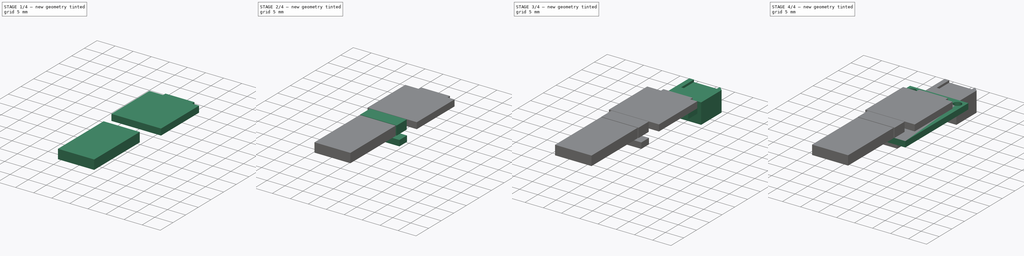
[diagram: build sequence overview — one tinted view per stage of 4, left to right]
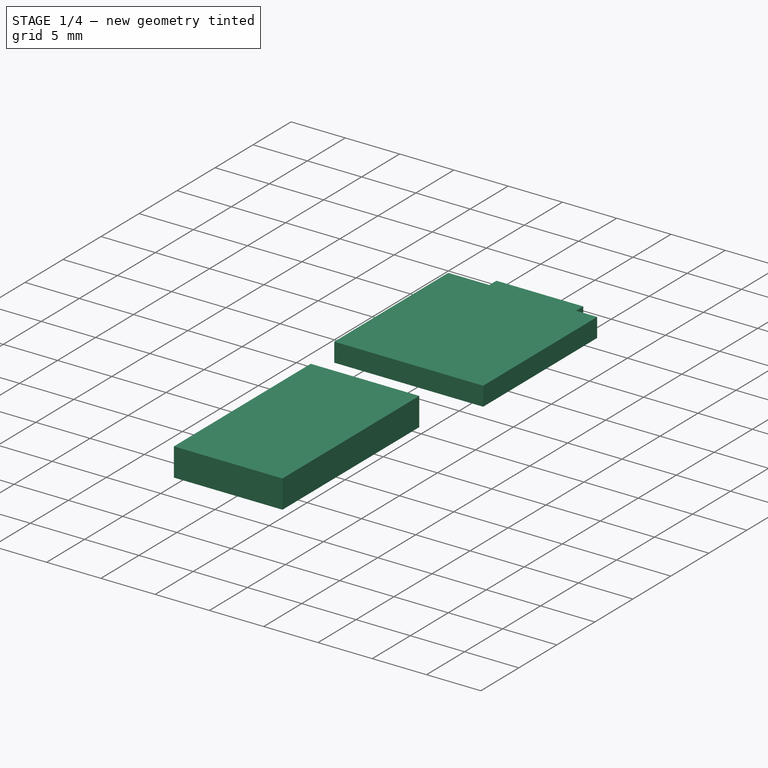
[diagram: stage 1 of 4 — iso view after this stage's code; geometry added in this stage tinted green]
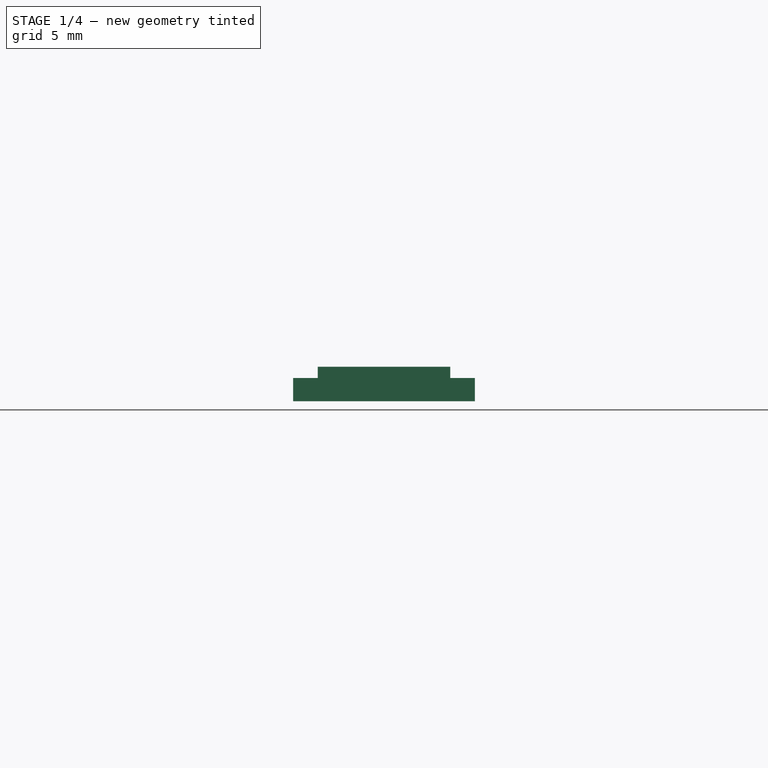
[diagram: stage 1 of 4 — front view after this stage's code; geometry added in this stage tinted green]
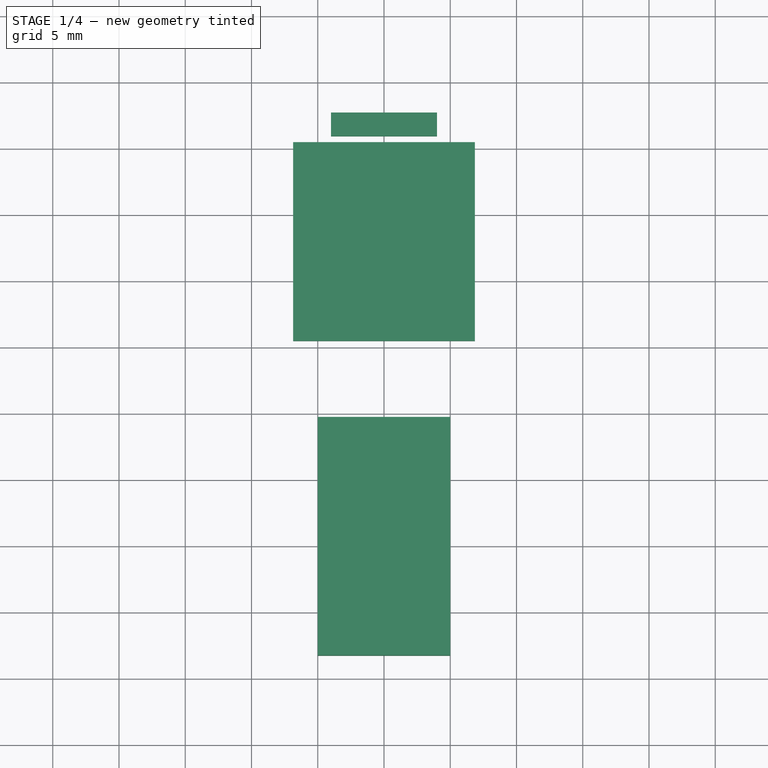
[diagram: stage 1 of 4 — top view after this stage's code; geometry added in this stage tinted green]
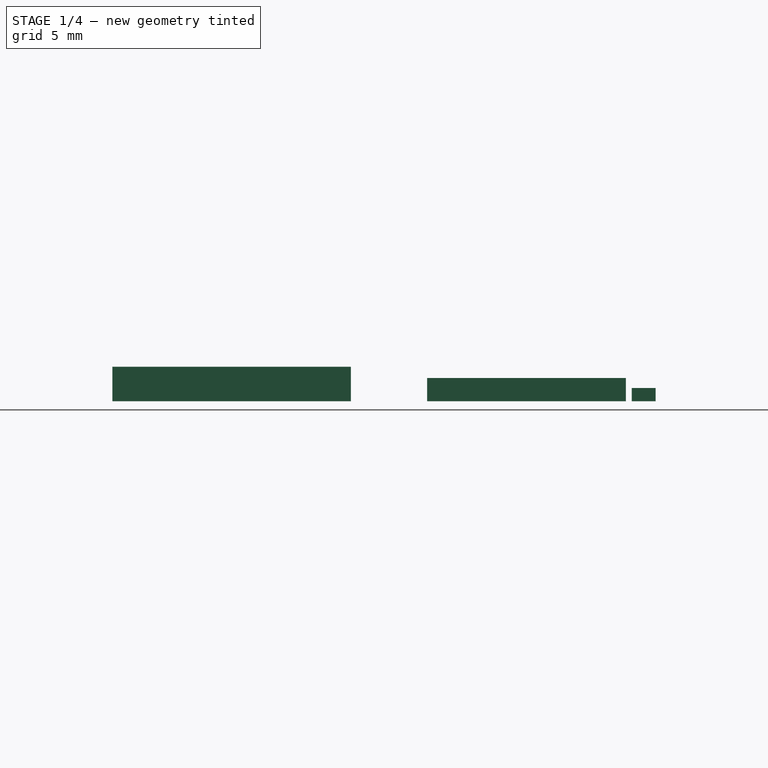
[diagram: stage 1 of 4 — right view after this stage's code; geometry added in this stage tinted green]
FCSTD DOCUMENT  (FreeCAD 0.19R24276 (Git))
Label: Std_IRSensor
License: All rights reserved
LicenseURL: http://en.wikipedia.org/wiki/All_rights_reserved
objects: Sketcher::SketchObject×12, PartDesign::Pad×9, PartDesign::Body×9, PartDesign::Plane×5, PartDesign::Pocket×3, PartDesign::Chamfer×1, App::Part×1
note: 52 computed .brp shape members not serialized (recipe doc carries the construction recipe); baked Part::Feature solids carry a one-line shape summary decoded from their .brp

FEATURE [PartDesign::Body] Body005  label="Pins"
  Group = -> [DatumPlane001,Sketch008,Pad005]
  Origin = -> Origin006
  Tip = -> Pad005
FEATURE [PartDesign::Plane] DatumPlane002
  AttachmentOffset = pos=(0,0,1.6) rot=(0,0,1;0rad)
  Length = 60
  MapMode = 5
  Placement = pos=(0,0,1.6) rot=(0,0,1;0rad)
  ResizeMode = 0
  Support = -> [XY_Plane007]
  Width = 60
FEATURE [Sketcher::SketchObject] Sketch009
  FullyConstrained = true
  MapMode = 5
  Placement = pos=(0,0,1.6) rot=(0,0,1;0rad)
  Support = -> [DatumPlane002]
  sketch-geometry (5):
    g0: LineSegment StartX=-4 StartY=-2.25 StartZ=0 EndX=4 EndY=-2.25 EndZ=0
    g1: LineSegment StartX=4 StartY=-2.25 StartZ=0 EndX=4 EndY=-4.05 EndZ=0
    g2: LineSegment StartX=4 StartY=-4.05 StartZ=0 EndX=-4 EndY=-4.05 EndZ=0
    g3: LineSegment StartX=-4 StartY=-4.05 StartZ=0 EndX=-4 EndY=-2.25 EndZ=0
    g4: LineSegment StartX=0 StartY=0 StartZ=0 EndX=0 EndY=-2.25 EndZ=0
  constraints (14):
    c: Coincident(g0,g1)
    c: Coincident(g1,g2)
    c: Coincident(g2,g3)
    c: Coincident(g3,g0)
    c: Horizontal(g0)
    c: Horizontal(g2)
    c: Vertical(g1)
    c: Vertical(g3)
    c: Coincident(g4,g-1)
    c: Vertical(g4)
    c: Symmetric(g0,g0,g4)
    c: Distance(g0) = 8
    c: Distance(g4) = 2.25
    c: Distance(g1) = 1.8
FEATURE [PartDesign::Pad] Pad006
  Direction = (1,1,1)
  Length = 1
  Length2 = 100
  Placement = pos=(0,0,1.6) rot=(0,0,1;0rad)
  Profile = -> Sketch009
  Type = 0
FEATURE [PartDesign::Body] Body006  label="IRSensSolder"
  Group = -> [DatumPlane002,Sketch009,Pad006]
  Origin = -> Origin007
  Tip = -> Pad006
FEATURE [PartDesign::Plane] DatumPlane003
  AttachmentOffset = pos=(0,0,1.6) rot=(0,0,1;0rad)
  Length = 60
  MapMode = 5
  Placement = pos=(0,0,1.6) rot=(0,0,1;0rad)
  ResizeMode = 0
  Support = -> [XY_Plane008]
  Width = 60
FEATURE [Sketcher::SketchObject] Sketch010
  FullyConstrained = true
  MapMode = 5
  Placement = pos=(0,0,1.6) rot=(0,0,1;0rad)
  Support = -> [DatumPlane003]
  sketch-geometry (5):
    g0: LineSegment StartX=-6.86 StartY=-4.5 StartZ=0 EndX=6.86 EndY=-4.5 EndZ=0
    g1: LineSegment StartX=6.86 StartY=-4.5 StartZ=0 EndX=6.86 EndY=-19.5 EndZ=0
    g2: LineSegment StartX=6.86 StartY=-19.5 StartZ=0 EndX=-6.86 EndY=-19.5 EndZ=0
    g3: LineSegment StartX=-6.86 StartY=-19.5 StartZ=0 EndX=-6.86 EndY=-4.5 EndZ=0
    g4: LineSegment StartX=0 StartY=0 StartZ=0 EndX=0 EndY=-4.5 EndZ=0
  constraints (14):
    c: Coincident(g0,g1)
    c: Coincident(g1,g2)
    c: Coincident(g2,g3)
    c: Coincident(g3,g0)
    c: Horizontal(g0)
    c: Horizontal(g2)
    c: Vertical(g1)
    c: Vertical(g3)
    c: Coincident(g4,g-1)
    c: PointOnObject(g4,g-2)
    c: Symmetric(g0,g0,g4)
    c: Distance(g0) = 13.72
    c: Distance(g1) = 15
    c: Distance(g4) = 4.5
FEATURE [PartDesign::Pad] Pad007
  Direction = (1,1,1)
  Length = 1.75
  Length2 = 100
  Placement = pos=(0,0,1.6) rot=(0,0,1;0rad)
  Profile = -> Sketch010
  Type = 0
FEATURE [PartDesign::Body] Body007  label="Chips"
  Group = -> [DatumPlane003,Sketch010,Pad007]
  Origin = -> Origin008
  Tip = -> Pad007
FEATURE [PartDesign::Plane] DatumPlane004
  AttachmentOffset = pos=(0,0,25.25) rot=(0,0,1;0rad)
  Length = 60
  MapMode = 5
  Placement = pos=(0,-25.25,5.6e-15) rot=(1,0,0;1.5708rad)
  ResizeMode = 0
  Support = -> [XZ_Plane009]
  Width = 60
FEATURE [Sketcher::SketchObject] Sketch011
  FullyConstrained = true
  MapMode = 5
  Placement = pos=(0,-25.25,5.6e-15) rot=(1,0,0;1.5708rad)
  Support = -> [DatumPlane004]
  sketch-geometry (5):
    g0: LineSegment StartX=-5 StartY=4.2 StartZ=0 EndX=5 EndY=4.2 EndZ=0
    g1: LineSegment StartX=5 StartY=4.2 StartZ=0 EndX=5 EndY=1.6 EndZ=0
    g2: LineSegment StartX=5 StartY=1.6 StartZ=0 EndX=-5 EndY=1.6 EndZ=0
    g3: LineSegment StartX=-5 StartY=1.6 StartZ=0 EndX=-5 EndY=4.2 EndZ=0
    g4: LineSegment StartX=0 StartY=0 StartZ=0 EndX=0 EndY=1.6 EndZ=0
  constraints (14):
    c: Coincident(g0,g1)
    c: Coincident(g1,g2)
    c: Coincident(g2,g3)
    c: Coincident(g3,g0)
    c: Horizontal(g0)
    c: Horizontal(g2)
    c: Vertical(g1)
    c: Vertical(g3)
    c: Coincident(g4,g-1)
    c: Vertical(g4)
    c: Symmetric(g2,g1,g4)
    c: Distance(g4) = 1.6
    c: Distance(g0) = 10
    c: Distance(g1) = 2.6
FEATURE [PartDesign::Pad] Pad008
  Direction = (1,1,1)
  Length = 18
  Length2 = 100
  Placement = pos=(0,-25.25,5.6e-15) rot=(1,0,0;1.5708rad)
  Profile = -> Sketch011
  Type = 0
FEATURE [PartDesign::Body] Body008  label="PinConnectors"
  Group = -> [DatumPlane004,Sketch011,Pad008]
  Origin = -> Origin009
  Tip = -> Pad008
FEATURE [App::Part] Part  label="IRSensor"
  Group = -> [Body,Body001,Body002,Body003,Body004,Body005,Body006,Body007,Body008]
  Origin = -> Origin
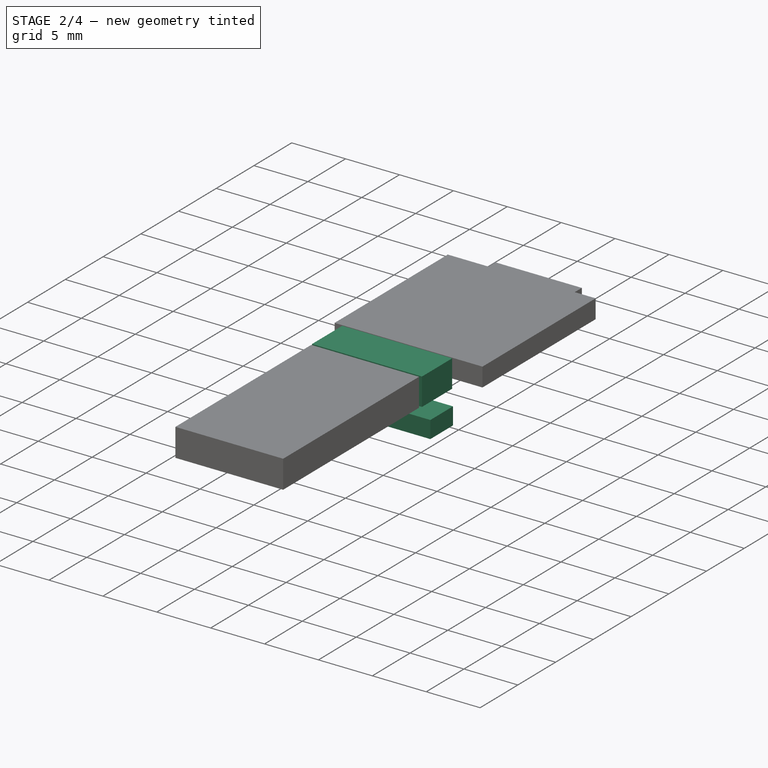
[diagram: stage 2 of 4 — iso view after this stage's code; geometry added in this stage tinted green]
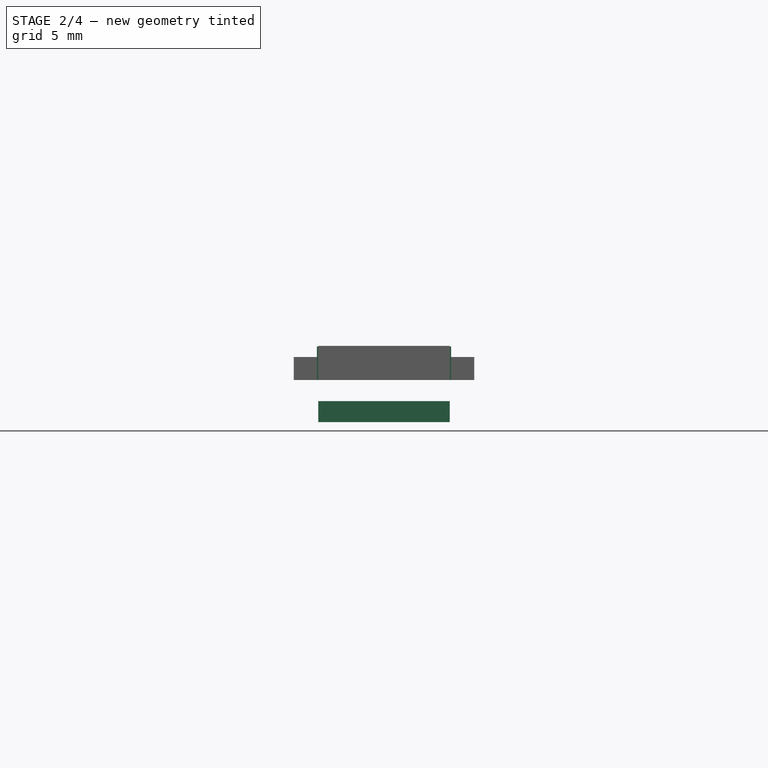
[diagram: stage 2 of 4 — front view after this stage's code; geometry added in this stage tinted green]
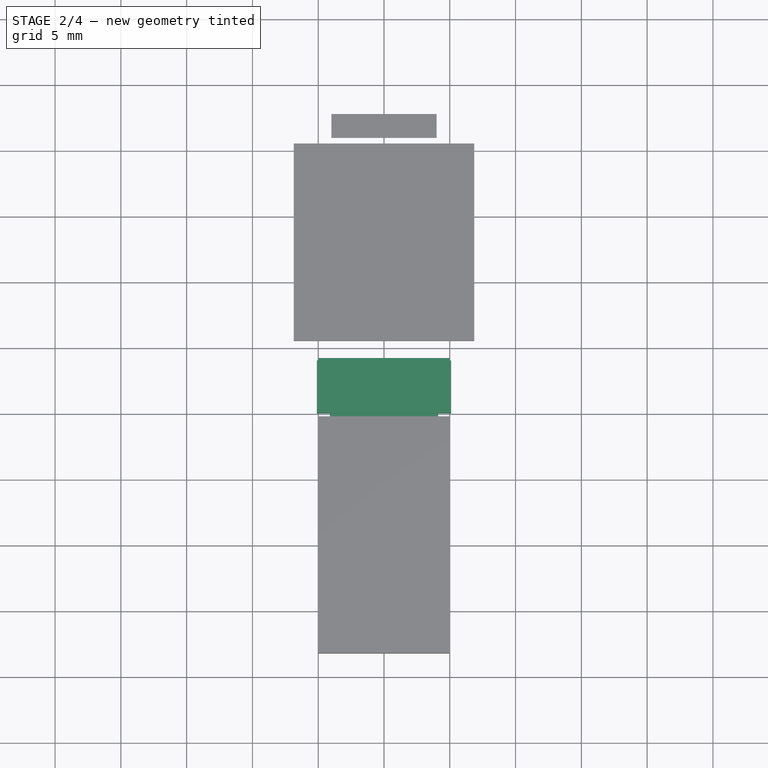
[diagram: stage 2 of 4 — top view after this stage's code; geometry added in this stage tinted green]
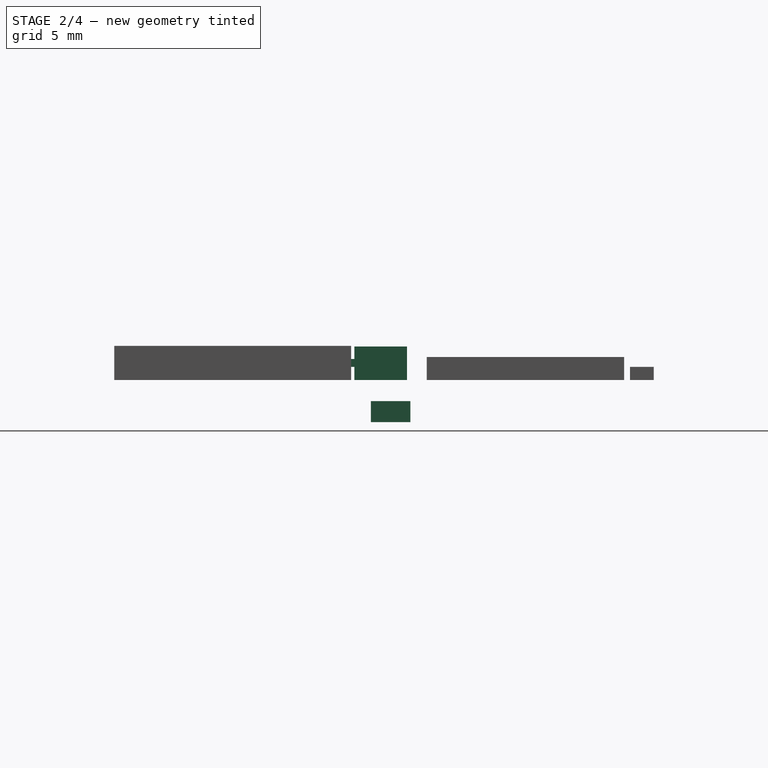
[diagram: stage 2 of 4 — right view after this stage's code; geometry added in this stage tinted green]
FEATURE [PartDesign::Body] Body002  label="IRConnect"
  Group = -> [Sketch005,Pad002]
  Origin = -> Origin003
  Tip = -> Pad002
FEATURE [Sketcher::SketchObject] Sketch006
  FullyConstrained = true
  MapMode = 5
  Support = -> [XY_Plane003]
  sketch-geometry (5):
    g0: LineSegment StartX=-5 StartY=-23.75 StartZ=0 EndX=5 EndY=-23.75 EndZ=0
    g1: LineSegment StartX=5 StartY=-23.75 StartZ=0 EndX=5 EndY=-20.75 EndZ=0
    g2: LineSegment StartX=5 StartY=-20.75 StartZ=0 EndX=-5 EndY=-20.75 EndZ=0
    g3: LineSegment StartX=-5 StartY=-20.75 StartZ=0 EndX=-5 EndY=-23.75 EndZ=0
    g4: LineSegment StartX=0 StartY=0 StartZ=0 EndX=0 EndY=-20.75 EndZ=0
  constraints (14):
    c: Coincident(g0,g1)
    c: Coincident(g1,g2)
    c: Coincident(g2,g3)
    c: Coincident(g3,g0)
    c: Horizontal(g0)
    c: Horizontal(g2)
    c: Vertical(g1)
    c: Vertical(g3)
    c: Coincident(g4,g-1)
    c: PointOnObject(g4,g-2)
    c: Symmetric(g2,g1,g4)
    c: Distance(g0) = 10
    c: Distance(g4) = 20.75
    c: Distance(g1) = 3
FEATURE [PartDesign::Pad] Pad003
  Direction = (1,1,1)
  Length = 1.6
  Length2 = 100
  Profile = -> Sketch006
  Reversed = true
  Type = 0
FEATURE [PartDesign::Body] Body003  label="PinSolderPoints"
  Group = -> [Sketch006,Pad003]
  Origin = -> Origin004
  Tip = -> Pad003
FEATURE [PartDesign::Plane] DatumPlane
  AttachmentOffset = pos=(0,0,1.6) rot=(0,0,1;0rad)
  Length = 60
  MapMode = 5
  Placement = pos=(0,0,1.6) rot=(0,0,1;0rad)
  ResizeMode = 0
  Support = -> [XY_Plane005]
  Width = 60
FEATURE [Sketcher::SketchObject] Sketch007
  FullyConstrained = true
  MapMode = 5
  Placement = pos=(0,0,1.6) rot=(0,0,1;0rad)
  Support = -> [DatumPlane]
  sketch-geometry (5):
    g0: LineSegment StartX=-5.1 StartY=-21 StartZ=0 EndX=5.1 EndY=-21 EndZ=0
    g1: LineSegment StartX=5.1 StartY=-21 StartZ=0 EndX=5.1 EndY=-25 EndZ=0
    g2: LineSegment StartX=5.1 StartY=-25 StartZ=0 EndX=-5.1 EndY=-25 EndZ=0
    g3: LineSegment StartX=-5.1 StartY=-25 StartZ=0 EndX=-5.1 EndY=-21 EndZ=0
    g4: LineSegment StartX=0 StartY=0 StartZ=0 EndX=0 EndY=-21 EndZ=0
  constraints (14):
    c: Coincident(g0,g1)
    c: Coincident(g1,g2)
    c: Coincident(g2,g3)
    c: Coincident(g3,g0)
    c: Horizontal(g0)
    c: Horizontal(g2)
    c: Vertical(g1)
    c: Vertical(g3)
    c: Coincident(g4,g-1)
    c: PointOnObject(g4,g-2)
    c: Symmetric(g0,g0,g4)
    c: Distance(g4) = 21
    c: Distance(g1) = 4
    c: Distance(g2) = 10.2
FEATURE [PartDesign::Pad] Pad004
  Direction = (1,1,1)
  Length = 2.55
  Length2 = 100
  Placement = pos=(0,0,1.6) rot=(0,0,1;0rad)
  Profile = -> Sketch007
  Type = 0
FEATURE [PartDesign::Body] Body004  label="PinMount"
  Group = -> [DatumPlane,Sketch007,Pad004]
  Origin = -> Origin005
  Tip = -> Pad004
FEATURE [PartDesign::Plane] DatumPlane001
  AttachmentOffset = pos=(0,0,25) rot=(0,0,1;0rad)
  Length = 60
  MapMode = 5
  Placement = pos=(0,-25,-5.6e-15) rot=(1,0,0;1.5708rad)
  ResizeMode = 0
  Support = -> [XZ_Plane006]
  Width = 60
FEATURE [Sketcher::SketchObject] Sketch008
  FullyConstrained = true
  MapMode = 5
  Placement = pos=(0,-25,-5.6e-15) rot=(1,0,0;1.5708rad)
  Support = -> [DatumPlane001]
  sketch-geometry (5):
    g0: LineSegment StartX=-4.11 StartY=3.2 StartZ=0 EndX=4.11 EndY=3.2 EndZ=0
    g1: LineSegment StartX=4.11 StartY=3.2 StartZ=0 EndX=4.11 EndY=2.6 EndZ=0
    g2: LineSegment StartX=4.11 StartY=2.6 StartZ=0 EndX=-4.11 EndY=2.6 EndZ=0
    g3: LineSegment StartX=-4.11 StartY=2.6 StartZ=0 EndX=-4.11 EndY=3.2 EndZ=0
    g4: LineSegment StartX=0 StartY=-1e-16 StartZ=0 EndX=0 EndY=2.6 EndZ=0
  constraints (14):
    c: Coincident(g0,g1)
    c: Coincident(g1,g2)
    c: Coincident(g2,g3)
    c: Coincident(g3,g0)
    c: Horizontal(g0)
    c: Horizontal(g2)
    c: Vertical(g1)
    c: Vertical(g3)
    c: Coincident(g4,g-1)
    c: PointOnObject(g4,g-2)
    c: Symmetric(g2,g1,g4)
    c: Distance(g4) = 2.6
    c: Distance(g1) = 0.6
    c: Distance(g0) = 8.22
FEATURE [PartDesign::Pad] Pad005
  Direction = (1,1,1)
  Length = 7
  Length2 = 100
  Placement = pos=(0,-25,-5.6e-15) rot=(1,0,0;1.5708rad)
  Profile = -> Sketch008
  Type = 0
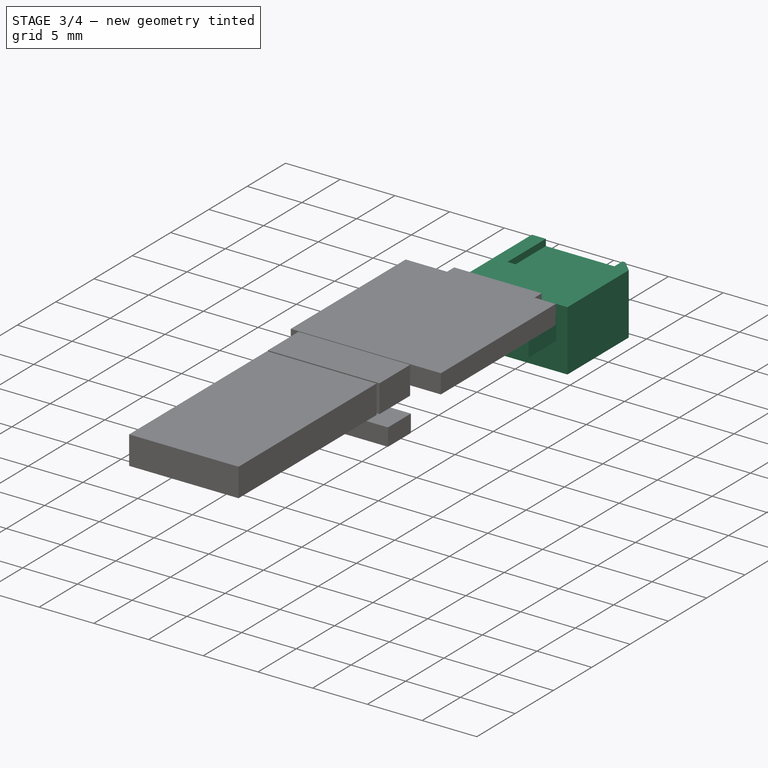
[diagram: stage 3 of 4 — iso view after this stage's code; geometry added in this stage tinted green]
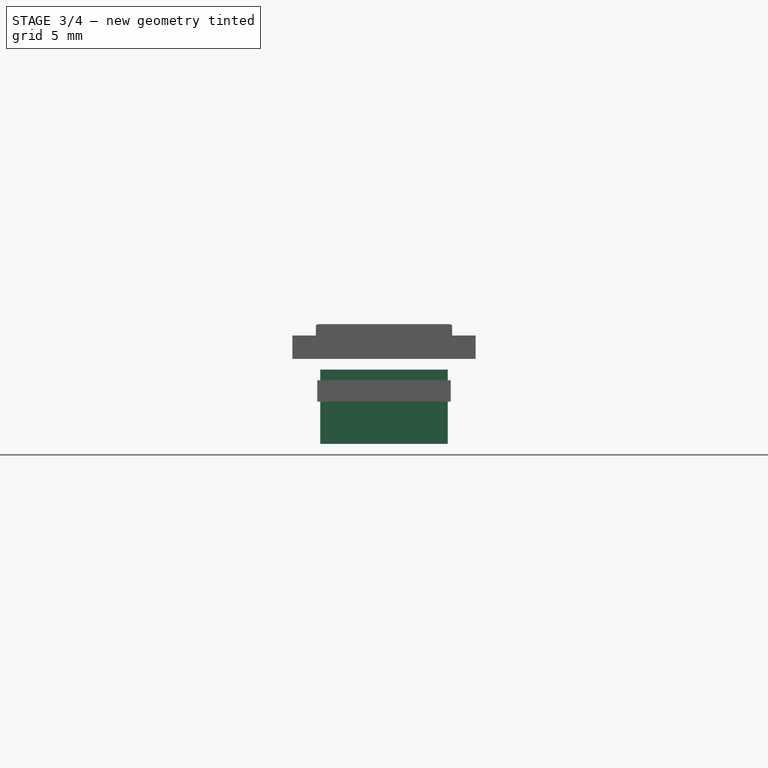
[diagram: stage 3 of 4 — front view after this stage's code; geometry added in this stage tinted green]
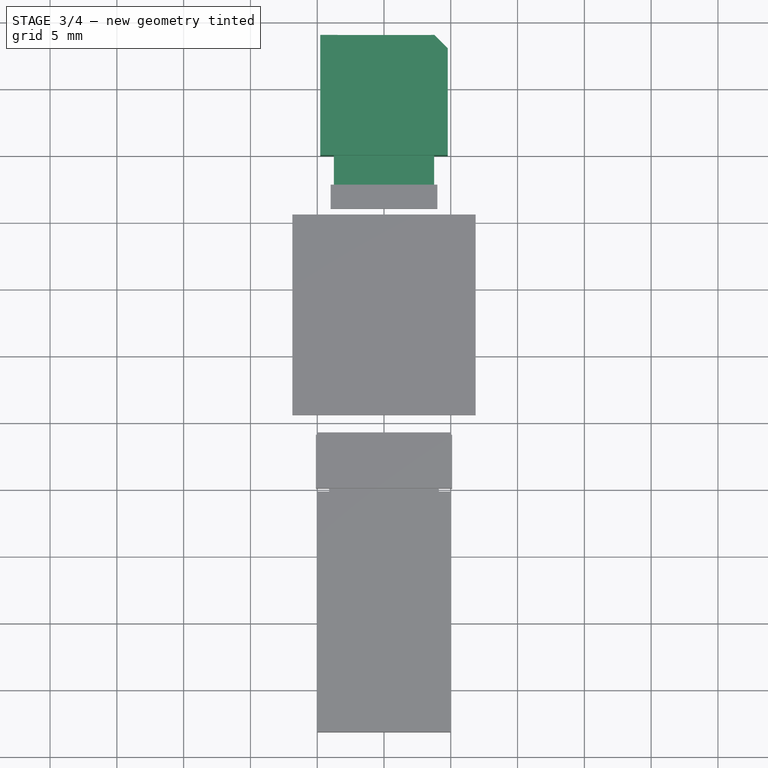
[diagram: stage 3 of 4 — top view after this stage's code; geometry added in this stage tinted green]
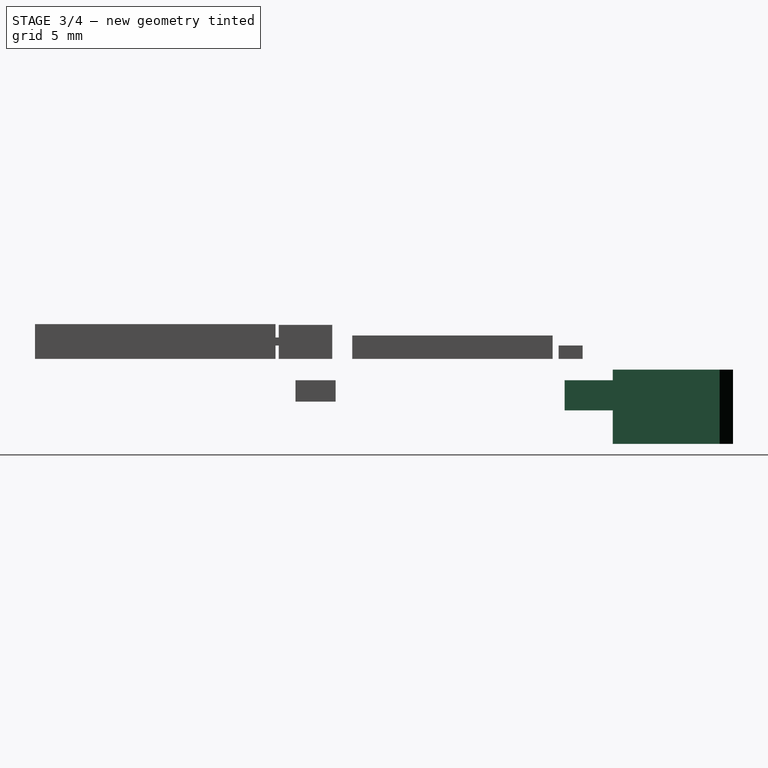
[diagram: stage 3 of 4 — right view after this stage's code; geometry added in this stage tinted green]
FEATURE [PartDesign::Body] Body  label="MainBoard"
  Group = -> [Sketch,Pad,Sketch001,Pocket]
  Origin = -> Origin001
  Tip = -> Pocket
FEATURE [Sketcher::SketchObject] Sketch002
  FullyConstrained = true
  MapMode = 5
  Placement = pos=(0,0,0) rot=(1,0,0;1.5708rad)
  Support = -> [XZ_Plane002]
  sketch-geometry (5):
    g0: LineSegment StartX=-4.775 StartY=0.8 StartZ=0 EndX=4.775 EndY=0.8 EndZ=0
    g1: LineSegment StartX=4.775 StartY=0.8 StartZ=0 EndX=4.775 EndY=-4.76 EndZ=0
    g2: LineSegment StartX=4.775 StartY=-4.76 StartZ=0 EndX=-4.775 EndY=-4.76 EndZ=0
    g3: LineSegment StartX=-4.775 StartY=-4.76 StartZ=0 EndX=-4.775 EndY=0.8 EndZ=0
    g4: LineSegment StartX=0 StartY=0 StartZ=0 EndX=0 EndY=0.8 EndZ=0
  constraints (14):
    c: Coincident(g0,g1)
    c: Coincident(g1,g2)
    c: Coincident(g2,g3)
    c: Coincident(g3,g0)
    c: Horizontal(g0)
    c: Horizontal(g2)
    c: Vertical(g1)
    c: Vertical(g3)
    c: Coincident(g4,g-1)
    c: PointOnObject(g4,g-2)
    c: Symmetric(g0,g0,g4)
    c: Distance(g0) = 9.55
    c: Distance(g1) = 5.56
    c: Distance(g4) = 0.8
FEATURE [PartDesign::Pad] Pad001
  Direction = (1,1,1)
  Length = 9
  Length2 = 100
  Placement = pos=(0,0,0) rot=(1,0,0;1.5708rad)
  Profile = -> Sketch002
  Reversed = true
  Type = 0
FEATURE [PartDesign::Chamfer] Chamfer
  Angle = 45
  Base = -> Pad001 [Edge7]
  BaseFeature = -> Pad001
  ChamferType = 0
  FlipDirection = false
  Placement = pos=(0,0,0) rot=(1,0,0;1.5708rad)
  Size = 1
  Size2 = 1
  SupportTransform = false
FEATURE [Sketcher::SketchObject] Sketch003
  FullyConstrained = true
  MapMode = 5
  Placement = pos=(0,9,-4e-15) rot=(-1,0,0;1.5708rad)
  Support = -> [Chamfer]
  sketch-geometry (11):
    g0: LineSegment StartX=-3.5 StartY=9.26 StartZ=0 EndX=3.5 EndY=9.26 EndZ=0
    g1: LineSegment StartX=3.5 StartY=9.26 StartZ=0 EndX=3.5 EndY=4.26 EndZ=0
    g2: LineSegment StartX=3.5 StartY=4.26 StartZ=0 EndX=-3.5 EndY=4.26 EndZ=0
    g3: LineSegment StartX=-3.5 StartY=4.26 StartZ=0 EndX=-3.5 EndY=9.26 EndZ=0
    g4: LineSegment StartX=-3.5 StartY=-0.2 StartZ=0 EndX=3.5 EndY=-0.2 EndZ=0
    g5: LineSegment StartX=3.5 StartY=-0.2 StartZ=0 EndX=3.5 EndY=-5.2 EndZ=0
    g6: LineSegment StartX=3.5 StartY=-5.2 StartZ=0 EndX=-3.5 EndY=-5.2 EndZ=0
    g7: LineSegment StartX=-3.5 StartY=-5.2 StartZ=0 EndX=-3.5 EndY=-0.2 EndZ=0
    g8: LineSegment StartX=-3.5 StartY=4.26 StartZ=0 EndX=-3.5 EndY=-0.2 EndZ=0
    g9: LineSegment StartX=3.5 StartY=4.26 StartZ=0 EndX=3.5 EndY=-0.2 EndZ=0
    g10: LineSegment StartX=0 StartY=0 StartZ=0 EndX=0 EndY=-0.2 EndZ=0
  constraints (30):
    c: Coincident(g0,g1)
    c: Coincident(g1,g2)
    c: Coincident(g2,g3)
    c: Coincident(g3,g0)
    c: Horizontal(g0)
    c: Horizontal(g2)
    c: Vertical(g1)
    c: Vertical(g3)
    c: Coincident(g4,g5)
    c: Coincident(g5,g6)
    c: Coincident(g6,g7)
    c: Coincident(g7,g4)
    c: Horizontal(g4)
    c: Horizontal(g6)
    c: Vertical(g5)
    c: Vertical(g7)
    c: Coincident(g8,g2)
    c: Coincident(g8,g4)
    c: Coincident(g9,g1)
    c: Coincident(g9,g4)
    c: Distance(g9) = 4.46
    c: Vertical(g8)
    c: Vertical(g9)
    c: Distance(g0) = 7
    c: Distance(g5) = 5
    c: Distance(g1) = 5
    c: Coincident(g10,g-1)
    c: PointOnObject(g10,g-2)
    c: Symmetric(g4,g4,g10)
    c: Distance(g10) = 0.2
FEATURE [PartDesign::Pocket] Pocket001
  BaseFeature = -> Chamfer
  Length = 5
  Length2 = 100
  Placement = pos=(0,0,0) rot=(1,0,0;1.5708rad)
  Profile = -> Sketch003
  Type = 0
FEATURE [PartDesign::Body] Body001  label="IRSens"
  Group = -> [Sketch002,Pad001,Chamfer,Sketch003,Pocket001,Sketch004,Pocket002]
  Origin = -> Origin002
  Tip = -> Pocket002
FEATURE [Sketcher::SketchObject] Sketch005
  FullyConstrained = true
  MapMode = 5
  Placement = pos=(0,0,0) rot=(1,0,0;1.5708rad)
  Support = -> [XZ_Plane003]
  sketch-geometry (4):
    g0: LineSegment StartX=-3.75 StartY=0 StartZ=0 EndX=3.75 EndY=0 EndZ=0
    g1: LineSegment StartX=3.75 StartY=0 StartZ=0 EndX=3.75 EndY=-2.25 EndZ=0
    g2: LineSegment StartX=3.75 StartY=-2.25 StartZ=0 EndX=-3.75 EndY=-2.25 EndZ=0
    g3: LineSegment StartX=-3.75 StartY=-2.25 StartZ=0 EndX=-3.75 EndY=0 EndZ=0
  constraints (11):
    c: Coincident(g0,g1)
    c: Coincident(g1,g2)
    c: Coincident(g2,g3)
    c: Coincident(g3,g0)
    c: Horizontal(g0)
    c: Horizontal(g2)
    c: Vertical(g1)
    c: Vertical(g3)
    c: Symmetric(g0,g0,g-1)
    c: Distance(g0) = 7.5
    c: Distance(g1) = 2.25
FEATURE [PartDesign::Pad] Pad002
  Direction = (1,1,1)
  Length = 3.6
  Length2 = 100
  Placement = pos=(0,0,0) rot=(1,0,0;1.5708rad)
  Profile = -> Sketch005
  Type = 0
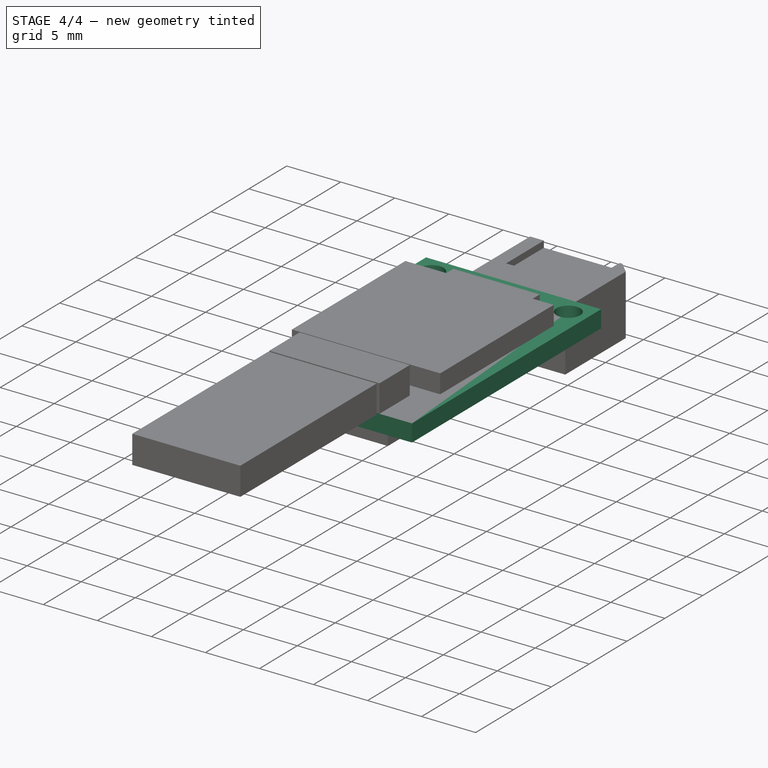
[diagram: stage 4 of 4 — iso view after this stage's code; geometry added in this stage tinted green]
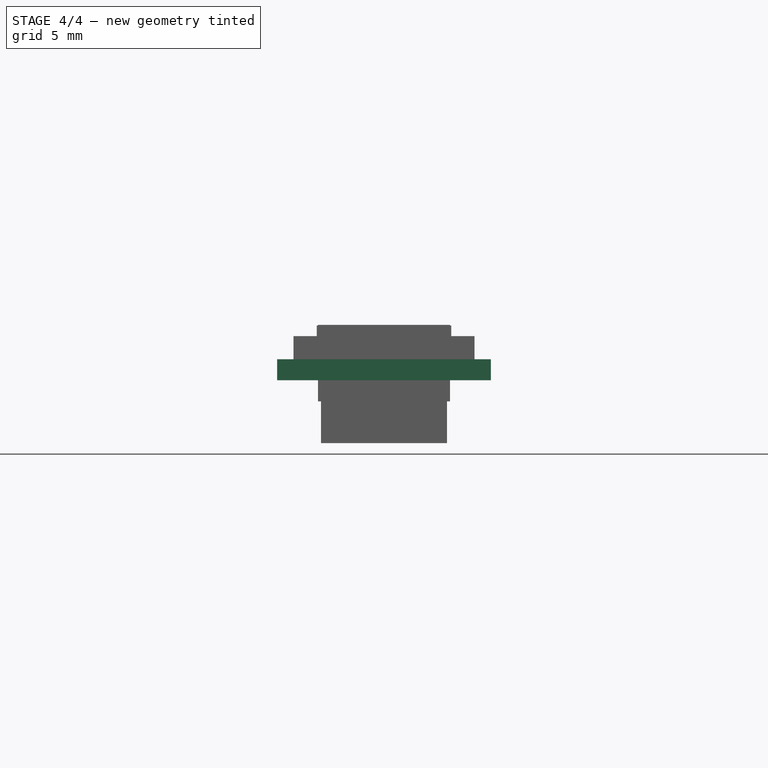
[diagram: stage 4 of 4 — front view after this stage's code; geometry added in this stage tinted green]
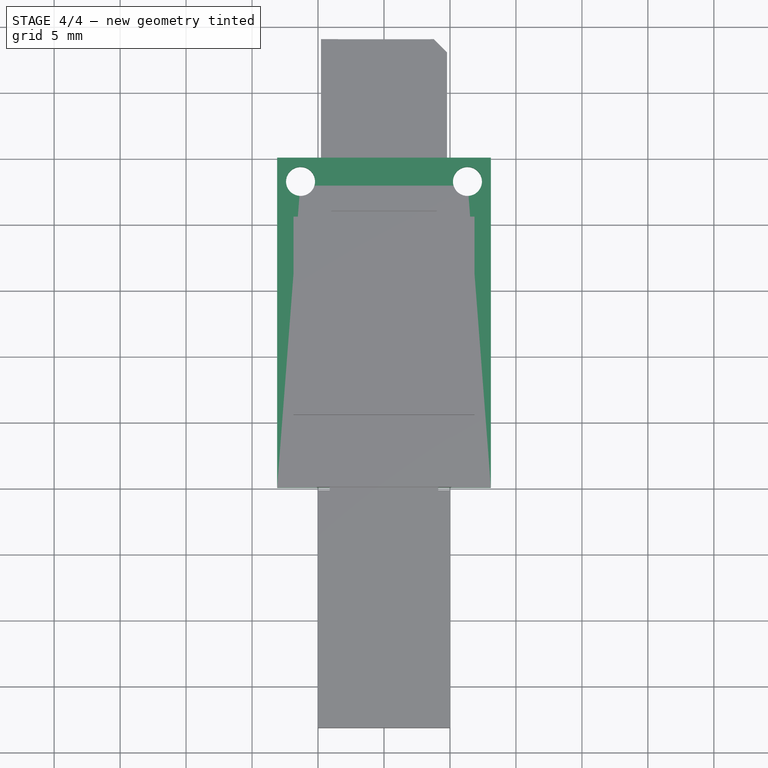
[diagram: stage 4 of 4 — top view after this stage's code; geometry added in this stage tinted green]
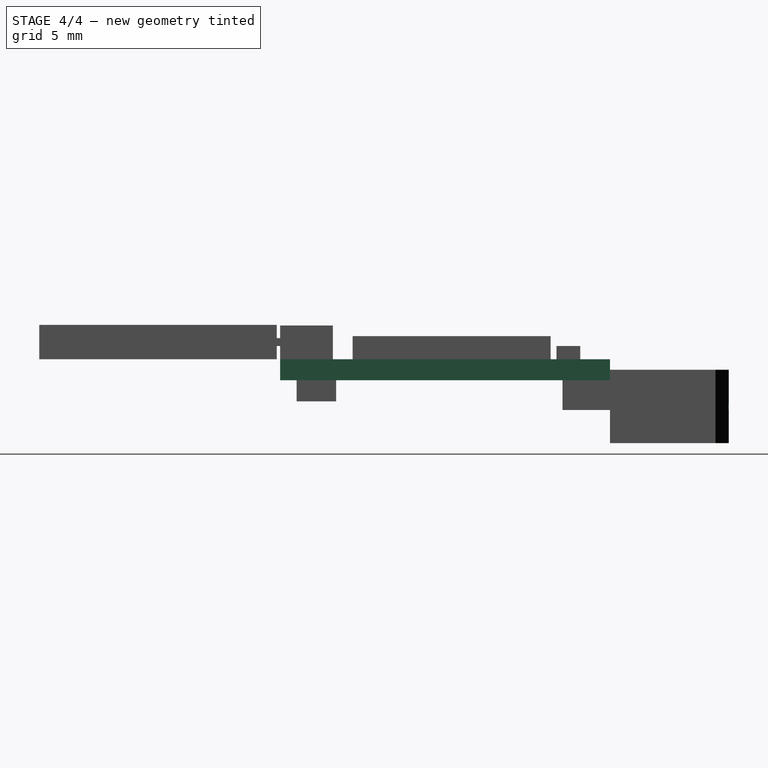
[diagram: stage 4 of 4 — right view after this stage's code; geometry added in this stage tinted green]
FEATURE [Sketcher::SketchObject] Sketch
  FullyConstrained = true
  MapMode = 5
  Support = -> [XY_Plane001]
  sketch-geometry (4):
    g0: LineSegment StartX=-8.1 StartY=0 StartZ=0 EndX=8.1 EndY=0 EndZ=0
    g1: LineSegment StartX=8.1 StartY=0 StartZ=0 EndX=8.1 EndY=-25 EndZ=0
    g2: LineSegment StartX=8.1 StartY=-25 StartZ=0 EndX=-8.1 EndY=-25 EndZ=0
    g3: LineSegment StartX=-8.1 StartY=-25 StartZ=0 EndX=-8.1 EndY=0 EndZ=0
  constraints (11):
    c: Coincident(g0,g1)
    c: Coincident(g1,g2)
    c: Coincident(g2,g3)
    c: Coincident(g3,g0)
    c: Horizontal(g0)
    c: Horizontal(g2)
    c: Vertical(g1)
    c: Vertical(g3)
    c: Symmetric(g0,g0,g-1)
    c: Distance(g1) = 25
    c: Distance(g2) = 16.2
FEATURE [PartDesign::Pad] Pad
  Direction = (1,1,1)
  Length = 1.6
  Length2 = 100
  Profile = -> Sketch
  Type = 0
FEATURE [Sketcher::SketchObject] Sketch001
  FullyConstrained = true
  MapMode = 5
  Support = -> [XY_Plane001]
  sketch-geometry (4):
    g0: Circle CenterX=-6.325 CenterY=-1.8 CenterZ=0 NormalX=0 NormalY=0 NormalZ=1 AngleXU=0 Radius=1.1
    g1: Circle CenterX=6.325 CenterY=-1.8 CenterZ=0 NormalX=0 NormalY=0 NormalZ=1 AngleXU=0 Radius=1.1
    g2: LineSegment StartX=-6.325 StartY=-1.8 StartZ=0 EndX=6.325 EndY=-1.8 EndZ=0
    g3: LineSegment StartX=0 StartY=0 StartZ=0 EndX=0 EndY=-1.8 EndZ=0
  constraints (10):
    c: Equal(g0,g1)
    c: Coincident(g2,g0)
    c: Coincident(g2,g1)
    c: Horizontal(g2)
    c: Diameter(g1) = 2.2
    c: Distance(g2) = 12.65
    c: Coincident(g3,g-1)
    c: PointOnObject(g3,g-2)
    c: Symmetric(g0,g1,g3)
    c: Distance(g3) = 1.8
FEATURE [PartDesign::Pocket] Pocket
  BaseFeature = -> Pad
  Length = 5
  Length2 = 100
  Profile = -> Sketch001
  Reversed = true
  Type = 1
FEATURE [Sketcher::SketchObject] Sketch004
  FullyConstrained = true
  MapMode = 5
  Placement = pos=(0,9,-4e-15) rot=(-1,0,0;1.5708rad)
  Support = -> [Pocket001]
  sketch-geometry (4):
    g0: Circle CenterX=-2.2 CenterY=2 CenterZ=0 NormalX=0 NormalY=0 NormalZ=1 AngleXU=0 Radius=1.6
    g1: Circle CenterX=2.2 CenterY=2 CenterZ=0 NormalX=0 NormalY=0 NormalZ=1 AngleXU=0 Radius=1.6
    g2: LineSegment StartX=-2.2 StartY=2 StartZ=0 EndX=2.2 EndY=2 EndZ=0
    g3: LineSegment StartX=0 StartY=0 StartZ=0 EndX=0 EndY=2 EndZ=0
  constraints (10):
    c: Coincident(g2,g0)
    c: Coincident(g2,g1)
    c: Horizontal(g2)
    c: Equal(g0,g1)
    c: Diameter(g0) = 3.2
    c: Distance(g2) = 4.4
    c: Coincident(g3,g-1)
    c: Vertical(g3)
    c: Symmetric(g0,g1,g3)
    c: Distance(g3) = 2
FEATURE [PartDesign::Pocket] Pocket002
  BaseFeature = -> Pocket001
  Length = 5
  Length2 = 100
  Placement = pos=(0,0,0) rot=(1,0,0;1.5708rad)
  Profile = -> Sketch004
  Type = 0
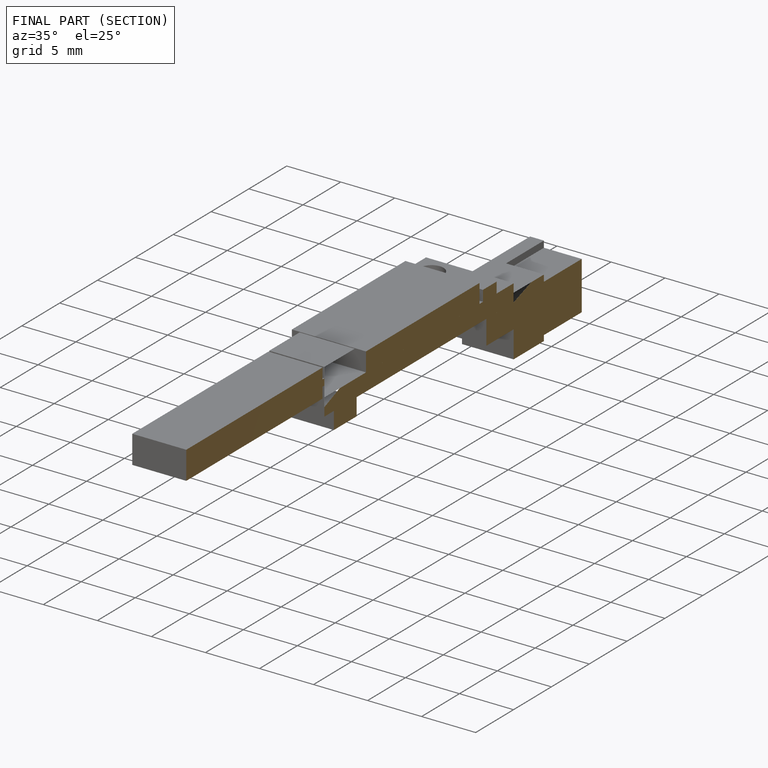
[diagram: finished part — half-section view (interior)]
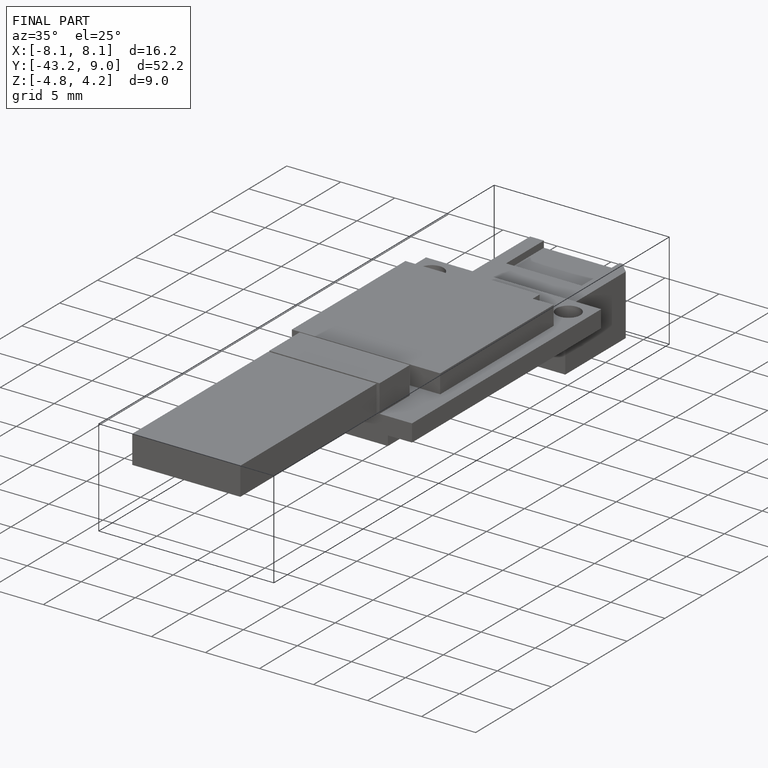
[diagram: finished part — iso view with bounding-box wireframe]
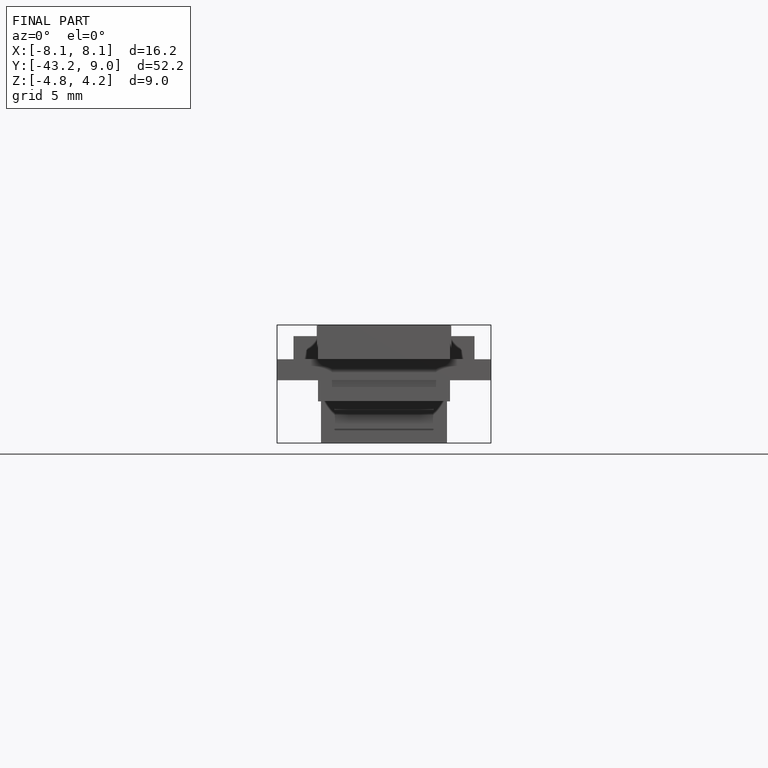
[diagram: finished part — front view with bounding-box wireframe]
